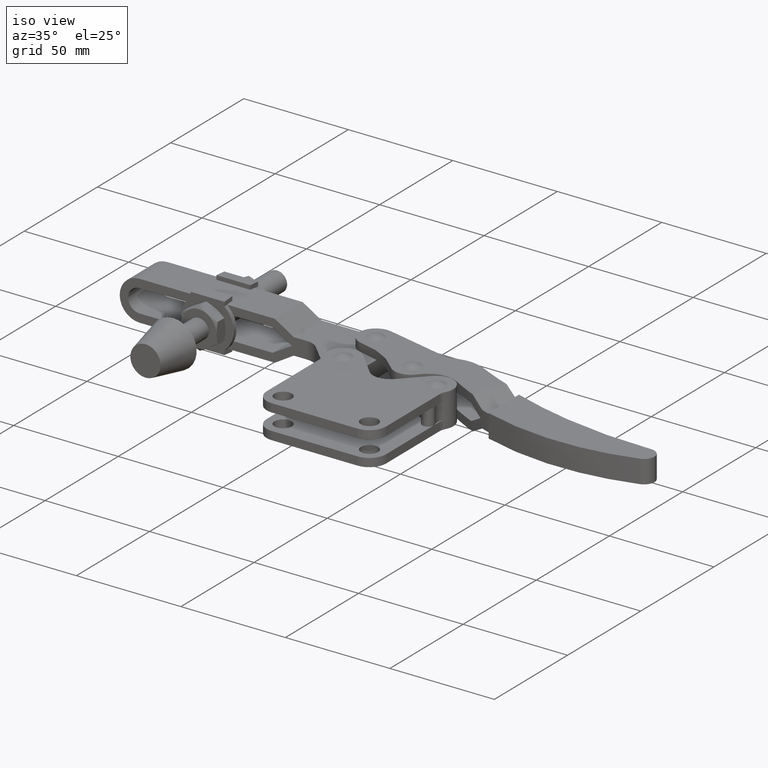
[diagram: clean part render]
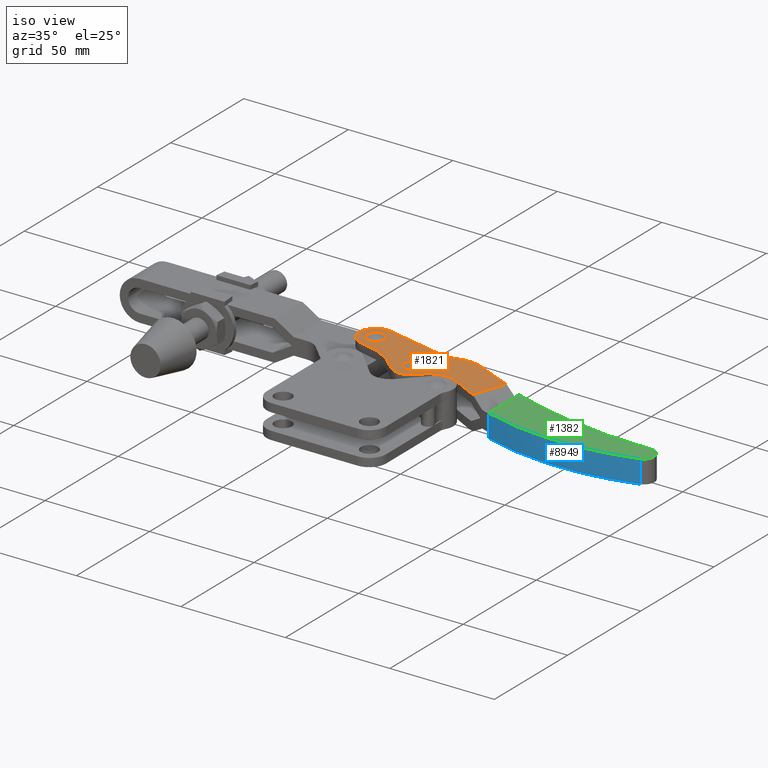
[diagram: same view with three faces highlighted in distinct colors, each labeled with its STEP entity id]
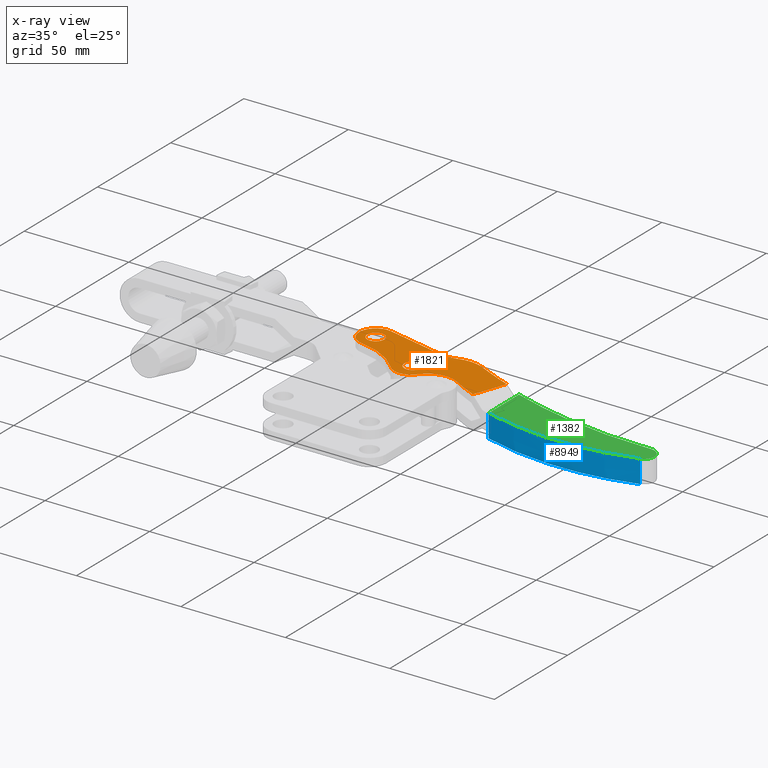
[diagram: x-ray of the same camera — body ghosted, the three highlighted faces saturated]
A machine part, iso view with three faces highlighted in distinct colors.
The next image is the same camera in x-ray (body ghosted, the three faces saturated) — at least one of them is partly hidden behind the body in this view.
Their STEP definitions:

[orange] entity #1821 — the highlighted planar face has unit normal (0, 0, -1).
#86 = CIRCLE ( 'NONE', #7951, 4.063249930784229100 ) ;
#95 = DIRECTION ( 'NONE',  ( 1.896091282942880500E-014, 2.492263242682608000E-017, -1.000000000000000000 ) ) ;
#321 = DIRECTION ( 'NONE',  ( -1.000000000000000000, 1.707720180178034100E-015, -1.899838700448063000E-014 ) ) ;
#417 = DIRECTION ( 'NONE',  ( -1.896091282942899700E-014, -2.492263242682654500E-017, 1.000000000000000000 ) ) ;
#533 = CIRCLE ( 'NONE', #4624, 16.99999999999998600 ) ;
#728 = DIRECTION ( 'NONE',  ( -0.9999970750637411400, -0.002418649202040521600, -1.897991567833449500E-014 ) ) ;
#757 = CARTESIAN_POINT ( 'NONE',  ( -23.74033431779628600, 46.40948752302850300, 3.999999999998878700 ) ) ;
#1050 = CARTESIAN_POINT ( 'NONE',  ( -23.74033431779650300, 42.34623759224427200, 3.999999999998878700 ) ) ;
#1158 = FACE_BOUND ( 'NONE', #4618, .T. ) ;
#1167 = CIRCLE ( 'NONE', #7042, 208.0000000000000000 ) ;
#1185 = ORIENTED_EDGE ( 'NONE', *, *, #1513, .T. ) ;
#1202 = LINE ( 'NONE', #7121, #8839 ) ;
#1261 = CARTESIAN_POINT ( 'NONE',  ( -50.89995488696968800, 55.89999999995359300, 3.999999999998363500 ) ) ;
#1263 = AXIS2_PLACEMENT_3D ( 'NONE', #3159, #8334, #3909 ) ;
#1413 = AXIS2_PLACEMENT_3D ( 'NONE', #7890, #3485, #8631 ) ;
#1414 = VERTEX_POINT ( 'NONE', #3661 ) ;
#1513 = EDGE_CURVE ( 'NONE', #2351, #6307, #1167, .T. ) ;
#1550 = EDGE_LOOP ( 'NONE', ( #1865, #4217, #1185, #4691, #5115, #7505, #3137, #2254, #4749, #6077 ) ) ;
#1564 = PLANE ( 'NONE',  #7659 ) ;
#1597 = CARTESIAN_POINT ( 'NONE',  ( -7.500062574786567500, 29.30489132586542000, 3.999999999999185500 ) ) ;
#1821 = ADVANCED_FACE ( 'NONE', ( #4861, #1158, #2889 ), #1564, .F. ) ;
#1865 = ORIENTED_EDGE ( 'NONE', *, *, #5604, .T. ) ;
#1967 = VERTEX_POINT ( 'NONE', #2450 ) ;
#1999 = DIRECTION ( 'NONE',  ( 0.9999970750637411400, 0.002418649202040774000, 1.897353801849631800E-014 ) ) ;
#2027 = EDGE_CURVE ( 'NONE', #1414, #4247, #9008, .T. ) ;
#2115 = CARTESIAN_POINT ( 'NONE',  ( -24.07740094939840600, 41.63483262392608700, 3.999999999998871600 ) ) ;
#2170 = EDGE_CURVE ( 'NONE', #3687, #5042, #8660, .T. ) ;
#2199 = ORIENTED_EDGE ( 'NONE', *, *, #8387, .F. ) ;
#2254 = ORIENTED_EDGE ( 'NONE', *, *, #3116, .T. ) ;
#2348 = DIRECTION ( 'NONE',  ( 0.9999970750637410300, 0.002418649202040514700, 1.897782001759776400E-014 ) ) ;
#2351 = VERTEX_POINT ( 'NONE', #4077 ) ;
#2429 = CARTESIAN_POINT ( 'NONE',  ( -50.92200311956136000, 55.89998914490118400, 3.999999999998363500 ) ) ;
#2440 = CARTESIAN_POINT ( 'NONE',  ( -50.92200311956114000, 59.96323907568687200, 3.999999999998363500 ) ) ;
#2450 = CARTESIAN_POINT ( 'NONE',  ( -52.01977667976437700, 47.97876277636394300, 3.999999999998341800 ) ) ;
#2541 = CARTESIAN_POINT ( 'NONE',  ( -50.92200311956136000, 55.89998914490118400, 3.999999999998363500 ) ) ;
#2611 = AXIS2_PLACEMENT_3D ( 'NONE', #1261, #6449, #1999 ) ;
#2688 = DIRECTION ( 'NONE',  ( 0.9999970750637411400, 0.002418649202040574500, 1.896102799342918600E-014 ) ) ;
#2853 = DIRECTION ( 'NONE',  ( 0.9999970750637411400, 0.002418649202040774000, 1.897353801849631800E-014 ) ) ;
#2889 = FACE_OUTER_BOUND ( 'NONE', #1550, .T. ) ;
#3077 = EDGE_LOOP ( 'NONE', ( #4409, #6487 ) ) ;
#3116 = EDGE_CURVE ( 'NONE', #1967, #9112, #3264, .T. ) ;
#3137 = ORIENTED_EDGE ( 'NONE', *, *, #5404, .T. ) ;
#3159 = CARTESIAN_POINT ( 'NONE',  ( -17.67629147331087200, 70.88046100839869700, 3.999999999998994100 ) ) ;
#3172 = DIRECTION ( 'NONE',  ( -1.000000000000000000, 0.0000000000000000000, -1.899838700447380200E-014 ) ) ;
#3264 = CIRCLE ( 'NONE', #1413, 36.50000000000002100 ) ;
#3291 = CARTESIAN_POINT ( 'NONE',  ( -50.92200311956114000, 51.83673921411549700, 3.999999999998363500 ) ) ;
#3302 = DIRECTION ( 'NONE',  ( -1.000000000000000000, 0.0000000000000000000, -1.899838700447380200E-014 ) ) ;
#3361 = VECTOR ( 'NONE', #5021, 1000.000000000000000 ) ;
#3384 = VERTEX_POINT ( 'NONE', #4453 ) ;
#3444 = CARTESIAN_POINT ( 'NONE',  ( 91.21575611816184900, 243.4839850496326800, 4.000000000001062300 ) ) ;
#3485 = DIRECTION ( 'NONE',  ( 1.896091282942899700E-014, 2.492263242682654500E-017, -1.000000000000000000 ) ) ;
#3534 = DIRECTION ( 'NONE',  ( -1.896091282942899700E-014, -2.492263242682654500E-017, 1.000000000000000000 ) ) ;
#3661 = CARTESIAN_POINT ( 'NONE',  ( -20.79260379126437300, 57.23170291335680600, 3.999999999998934200 ) ) ;
#3687 = VERTEX_POINT ( 'NONE', #7786 ) ;
#3909 = DIRECTION ( 'NONE',  ( 0.9999970750637411400, 0.002418649202040401500, 1.895804941603223500E-014 ) ) ;
#4077 = CARTESIAN_POINT ( 'NONE',  ( 16.11568427977723400, 49.51496894172576200, 3.999999999999634100 ) ) ;
#4217 = ORIENTED_EDGE ( 'NONE', *, *, #8930, .T. ) ;
#4247 = VERTEX_POINT ( 'NONE', #9245 ) ;
#4260 = ORIENTED_EDGE ( 'NONE', *, *, #2170, .F. ) ;
#4301 = AXIS2_PLACEMENT_3D ( 'NONE', #2429, #7593, #3172 ) ;
#4409 = ORIENTED_EDGE ( 'NONE', *, *, #7013, .T. ) ;
#4453 = CARTESIAN_POINT ( 'NONE',  ( -1.063269083125172100, 40.20641826229530800, 3.999999999999308100 ) ) ;
#4461 = CARTESIAN_POINT ( 'NONE',  ( -0.3788408210954122300, 56.73701770736226300, 3.999999999999321000 ) ) ;
#4512 = DIRECTION ( 'NONE',  ( -0.9999970750637411400, -0.002418649202040597500, -1.896091764907240000E-014 ) ) ;
#4535 = CIRCLE ( 'NONE', #2611, 8.000000000000003600 ) ;
#4549 = CARTESIAN_POINT ( 'NONE',  ( -57.12896360939011200, 11.83811794373621000, 3.999999999998244500 ) ) ;
#4618 = EDGE_LOOP ( 'NONE', ( #2199, #4260 ) ) ;
#4624 = AXIS2_PLACEMENT_3D ( 'NONE', #6091, #5153, #728 ) ;
#4650 = CARTESIAN_POINT ( 'NONE',  ( 10.76280230628348600, 34.07859469873378100, 3.999999999999531900 ) ) ;
#4691 = ORIENTED_EDGE ( 'NONE', *, *, #8612, .T. ) ;
#4749 = ORIENTED_EDGE ( 'NONE', *, *, #6203, .T. ) ;
#4797 = VERTEX_POINT ( 'NONE', #3291 ) ;
#4828 = CARTESIAN_POINT ( 'NONE',  ( -23.74033431779650300, 42.34623759224427200, 3.999999999998878700 ) ) ;
#4861 = FACE_BOUND ( 'NONE', #3077, .T. ) ;
#5021 = DIRECTION ( 'NONE',  ( -0.9749112925029915800, 0.2225937369966782800, -1.847966041168731400E-014 ) ) ;
#5042 = VERTEX_POINT ( 'NONE', #757 ) ;
#5115 = ORIENTED_EDGE ( 'NONE', *, *, #7556, .T. ) ;
#5153 = DIRECTION ( 'NONE',  ( -1.896091282942899700E-014, -2.492263242682654500E-017, 1.000000000000000000 ) ) ;
#5404 = EDGE_CURVE ( 'NONE', #4247, #1967, #4535, .T. ) ;
#5500 = DIRECTION ( 'NONE',  ( -1.896091282942899700E-014, -2.492263242682654500E-017, 1.000000000000000000 ) ) ;
#5585 = DIRECTION ( 'NONE',  ( -1.000000000000000000, 0.0000000000000000000, -1.899838700448063000E-014 ) ) ;
#5604 = EDGE_CURVE ( 'NONE', #3384, #8262, #8789, .T. ) ;
#6077 = ORIENTED_EDGE ( 'NONE', *, *, #8045, .T. ) ;
#6091 = CARTESIAN_POINT ( 'NONE',  ( -7.864937686323167500, 41.47404441496517800, 3.999999999999178900 ) ) ;
#6203 = EDGE_CURVE ( 'NONE', #9112, #7765, #6478, .T. ) ;
#6307 = VERTEX_POINT ( 'NONE', #4461 ) ;
#6364 = AXIS2_PLACEMENT_3D ( 'NONE', #1597, #6776, #2348 ) ;
#6449 = DIRECTION ( 'NONE',  ( -1.896091282942899700E-014, -2.492263242682654500E-017, 1.000000000000000000 ) ) ;
#6478 = CIRCLE ( 'NONE', #7021, 8.000000000000003600 ) ;
#6487 = ORIENTED_EDGE ( 'NONE', *, *, #7636, .T. ) ;
#6502 = VERTEX_POINT ( 'NONE', #2440 ) ;
#6723 = AXIS2_PLACEMENT_3D ( 'NONE', #2541, #7707, #3302 ) ;
#6732 = CARTESIAN_POINT ( 'NONE',  ( -30.01925491074522900, 36.27811987243127600, 3.999999999998758800 ) ) ;
#6776 = DIRECTION ( 'NONE',  ( 1.896091282942899700E-014, 2.492263242682654500E-017, -1.000000000000000000 ) ) ;
#7013 = EDGE_CURVE ( 'NONE', #6502, #4797, #9233, .T. ) ;
#7021 = AXIS2_PLACEMENT_3D ( 'NONE', #2115, #7298, #2853 ) ;
#7042 = AXIS2_PLACEMENT_3D ( 'NONE', #3444, #7847, #2688 ) ;
#7121 = CARTESIAN_POINT ( 'NONE',  ( 10.76280230628346500, 34.07859469873376000, 3.999999999999531900 ) ) ;
#7298 = DIRECTION ( 'NONE',  ( -1.896091282942899700E-014, -2.492263242682654500E-017, 1.000000000000000000 ) ) ;
#7505 = ORIENTED_EDGE ( 'NONE', *, *, #2027, .T. ) ;
#7556 = EDGE_CURVE ( 'NONE', #9306, #1414, #9582, .T. ) ;
#7593 = DIRECTION ( 'NONE',  ( 1.896091282942899700E-014, 2.492263242682654500E-017, -1.000000000000000000 ) ) ;
#7636 = EDGE_CURVE ( 'NONE', #4797, #6502, #7928, .T. ) ;
#7659 = AXIS2_PLACEMENT_3D ( 'NONE', #4549, #95, #4512 ) ;
#7685 = CARTESIAN_POINT ( 'NONE',  ( -13.24535750499384400, 57.60014383717064800, 3.999999999999077200 ) ) ;
#7707 = DIRECTION ( 'NONE',  ( 1.896091282942899700E-014, 2.492263242682654500E-017, -1.000000000000000000 ) ) ;
#7765 = VERTEX_POINT ( 'NONE', #7833 ) ;
#7786 = CARTESIAN_POINT ( 'NONE',  ( -23.74033431779628600, 38.28298766146003400, 3.999999999998878700 ) ) ;
#7833 = CARTESIAN_POINT ( 'NONE',  ( -17.65829606087495000, 36.86041198576126000, 3.999999999998993200 ) ) ;
#7847 = DIRECTION ( 'NONE',  ( 1.896091282942899700E-014, 2.492263242682654500E-017, -1.000000000000000000 ) ) ;
#7883 = DIRECTION ( 'NONE',  ( 0.3276309422909433100, 0.9448057819750832500, 6.235728784221084500E-015 ) ) ;
#7890 = CARTESIAN_POINT ( 'NONE',  ( -57.12896360939011200, 11.83811794373621000, 3.999999999998244500 ) ) ;
#7928 = CIRCLE ( 'NONE', #6723, 4.063249930785689300 ) ;
#7936 = CARTESIAN_POINT ( 'NONE',  ( 60.20320925377825500, 143.9689771753914200, 4.000000000000471600 ) ) ;
#7951 = AXIS2_PLACEMENT_3D ( 'NONE', #4828, #417, #5585 ) ;
#8022 = CARTESIAN_POINT ( 'NONE',  ( -49.11920499099626600, 63.69929033997752300, 3.999999999998397300 ) ) ;
#8045 = EDGE_CURVE ( 'NONE', #7765, #3384, #9096, .T. ) ;
#8262 = VERTEX_POINT ( 'NONE', #4650 ) ;
#8334 = DIRECTION ( 'NONE',  ( 1.896091282942899700E-014, 2.492263242682654500E-017, -1.000000000000000000 ) ) ;
#8387 = EDGE_CURVE ( 'NONE', #5042, #3687, #86, .T. ) ;
#8612 = EDGE_CURVE ( 'NONE', #6307, #9306, #533, .T. ) ;
#8631 = DIRECTION ( 'NONE',  ( -0.9999970750637410300, -0.002418649202040619200, -1.896314155930810100E-014 ) ) ;
#8660 = CIRCLE ( 'NONE', #9289, 4.063249930784229100 ) ;
#8684 = DIRECTION ( 'NONE',  ( -0.9999970750637410300, -0.002418649202040554600, -1.895959184947265100E-014 ) ) ;
#8789 = CIRCLE ( 'NONE', #9046, 120.5000000000000300 ) ;
#8839 = VECTOR ( 'NONE', #7883, 1000.000000000000000 ) ;
#8930 = EDGE_CURVE ( 'NONE', #8262, #2351, #1202, .T. ) ;
#9008 = LINE ( 'NONE', #8022, #3361 ) ;
#9046 = AXIS2_PLACEMENT_3D ( 'NONE', #7936, #3534, #8684 ) ;
#9096 = CIRCLE ( 'NONE', #6364, 12.66000000000000500 ) ;
#9112 = VERTEX_POINT ( 'NONE', #6732 ) ;
#9233 = CIRCLE ( 'NONE', #4301, 4.063249930785689300 ) ;
#9245 = CARTESIAN_POINT ( 'NONE',  ( -49.11920499099626600, 63.69929033997752300, 3.999999999998397300 ) ) ;
#9289 = AXIS2_PLACEMENT_3D ( 'NONE', #1050, #5500, #321 ) ;
#9306 = VERTEX_POINT ( 'NONE', #7685 ) ;
#9582 = CIRCLE ( 'NONE', #1263, 14.00000000000001100 ) ;

[blue] entity #8949 — the highlighted face is a freeform B-spline surface patch.
#199 = CARTESIAN_POINT ( 'NONE',  ( 95.60933568258580800, 27.21971329282849100, -3.999999999998857800 ) ) ;
#462 = CARTESIAN_POINT ( 'NONE',  ( 22.66801446381552400, 27.88677298597539100, -5.833333302405744500 ) ) ;
#557 = CARTESIAN_POINT ( 'NONE',  ( 36.77727933315194500, 23.23509302539487800, -0.6339999999998707800 ) ) ;
#591 = CARTESIAN_POINT ( 'NONE',  ( 66.51762730411285000, 20.80742639757678700, -2.877999999999371700 ) ) ;
#623 = CARTESIAN_POINT ( 'NONE',  ( 96.34085720835994900, 27.44360647524962400, -5.121999999998872800 ) ) ;
#907 = EDGE_LOOP ( 'NONE', ( #6024, #7009, #4611, #6976, #6947 ) ) ;
#1114 = EDGE_CURVE ( 'NONE', #8273, #8968, #3819, .T. ) ;
#1189 = CARTESIAN_POINT ( 'NONE',  ( 22.66801694025606700, 27.88574909492273700, -9.499999905955819600 ) ) ;
#1295 = CARTESIAN_POINT ( 'NONE',  ( 36.77730727342716200, 23.23814853291771600, -5.122000000000002600 ) ) ;
#1330 = CARTESIAN_POINT ( 'NONE',  ( 66.51760386377027600, 20.80486299606856100, -7.365999999999507600 ) ) ;
#1354 = CARTESIAN_POINT ( 'NONE',  ( 96.34084921816929600, 27.44273267970391600, -9.609999999999008200 ) ) ;
#1505 = CARTESIAN_POINT ( 'NONE',  ( 95.60933507019049700, 27.21964632218098500, -0.3333333333321825100 ) ) ;
#1849 = CARTESIAN_POINT ( 'NONE',  ( 22.66801694025538800, 27.88574909509437900, 1.499999905955352200 ) ) ;
#2029 = CARTESIAN_POINT ( 'NONE',  ( 36.77723292126212600, 23.23001748914987300, -9.610000000000136200 ) ) ;
#2059 = CARTESIAN_POINT ( 'NONE',  ( 81.41732140830230000, 22.82186998428786900, 1.610000000001038200 ) ) ;
#2403 = CARTESIAN_POINT ( 'NONE',  ( 37.21457113713999100, 23.18848390368755500, -9.499999999999980500 ) ) ;
#2641 = CARTESIAN_POINT ( 'NONE',  ( 22.66801507245418500, 27.88652134261207700, -0.3333333278482822900 ) ) ;
#2718 = VERTEX_POINT ( 'NONE', #3824 ) ;
#2772 = CARTESIAN_POINT ( 'NONE',  ( 51.63757441058933000, 20.94091681201651400, -0.6339999999995914500 ) ) ;
#2808 = CARTESIAN_POINT ( 'NONE',  ( 81.41739575833526000, 22.83000079487904100, -2.877999999999091500 ) ) ;
#2939 = FACE_OUTER_BOUND ( 'NONE', #907, .T. ) ;
#2983 = CARTESIAN_POINT ( 'NONE',  ( 95.60933568258580800, 27.21971329282849100, -3.999999999998857800 ) ) ;
#2993 = B_SPLINE_CURVE_WITH_KNOTS ( 'NONE', 5,
 ( #1849, #6293, #7755, #3343, #8507, #4084 ),
 .UNSPECIFIED., .F., .F.,
 ( 6, 6 ),
 ( 1.425060440672305600E-007, 0.07404232256998222200 ),
 .UNSPECIFIED. ) ;
#3225 = CARTESIAN_POINT ( 'NONE',  ( 95.60933386334160400, 27.21951434294650700, -7.299999999998867400 ) ) ;
#3311 = CARTESIAN_POINT ( 'NONE',  ( 66.37213572788265000, 20.84278871716341200, -9.499999999999428000 ) ) ;
#3343 = CARTESIAN_POINT ( 'NONE',  ( 66.37213572711675600, 20.84278864084439700, 1.500000000000595100 ) ) ;
#3509 = CARTESIAN_POINT ( 'NONE',  ( 21.94071054131607900, 28.12394104547358600, -2.878000000000218200 ) ) ;
#3542 = CARTESIAN_POINT ( 'NONE',  ( 51.63759784667201600, 20.94347974764709600, -5.121999999999724600 ) ) ;
#3566 = CARTESIAN_POINT ( 'NONE',  ( 81.41736781852363000, 22.82694533803061900, -7.365999999999226100 ) ) ;
#3819 = B_SPLINE_CURVE_WITH_KNOTS ( 'NONE', 5,
 ( #9220, #2403, #6796, #3311, #7049, #6322 ),
 .UNSPECIFIED., .F., .F.,
 ( 6, 6 ),
 ( 1.425059404098854000E-007, 0.07404232257266157900 ),
 .UNSPECIFIED. ) ;
#3824 = CARTESIAN_POINT ( 'NONE',  ( 22.66801694025538800, 27.88574909509437900, 1.499999905955352200 ) ) ;
#3971 = CARTESIAN_POINT ( 'NONE',  ( 95.60933629498111900, 27.21978026348466900, -5.099999999998866300 ) ) ;
#4084 = CARTESIAN_POINT ( 'NONE',  ( 95.60933101707583100, 27.21920309318262800, 1.500000000001153300 ) ) ;
#4149 = VERTEX_POINT ( 'NONE', #199 ) ;
#4211 = CARTESIAN_POINT ( 'NONE',  ( 21.94070255496834300, 28.12306767020417900, 1.609999999999911500 ) ) ;
#4244 = CARTESIAN_POINT ( 'NONE',  ( 21.94070951981991200, 28.12382933614094700, -7.366000000000354000 ) ) ;
#4274 = CARTESIAN_POINT ( 'NONE',  ( 51.63752289505934800, 20.93528314916856600, -9.609999999999855500 ) ) ;
#4307 = CARTESIAN_POINT ( 'NONE',  ( 96.34084921814908900, 27.44273267751331200, 1.610000000001323000 ) ) ;
#4611 = ORIENTED_EDGE ( 'NONE', *, *, #7607, .T. ) ;
#4681 = CARTESIAN_POINT ( 'NONE',  ( 22.66801694025606700, 27.88574909492273700, -9.499999905955819600 ) ) ;
#4877 = CARTESIAN_POINT ( 'NONE',  ( 22.66801446381541800, 27.88677298600475000, -4.000000000000235400 ) ) ;
#4946 = CARTESIAN_POINT ( 'NONE',  ( 95.60933101720192400, 27.21920309327097300, -9.499999999998870200 ) ) ;
#4979 = CARTESIAN_POINT ( 'NONE',  ( 36.77723292086184900, 23.23001744540084700, 1.610000000000193700 ) ) ;
#5012 = CARTESIAN_POINT ( 'NONE',  ( 66.51760386330323600, 20.80486294500864700, -0.6339999999993061200 ) ) ;
#5040 = CARTESIAN_POINT ( 'NONE',  ( 96.34085720835605600, 27.44360647482610800, -2.877999999998807700 ) ) ;
#5295 = B_SPLINE_CURVE_WITH_KNOTS ( 'NONE', 3,
 ( #7810, #2641, #9316, #4877, #462, #5631, #1189 ),
 .UNSPECIFIED., .F., .F.,
 ( 4, 3, 4 ),
 ( 0.0000000000000000000, 0.005499999907216510500, 0.01099999981443303700 ),
 .UNSPECIFIED. ) ;
#5429 = CARTESIAN_POINT ( 'NONE',  ( 95.60933101707583100, 27.21920309318262800, 1.500000000001153300 ) ) ;
#5520 = EDGE_CURVE ( 'NONE', #2718, #8273, #5295, .T. ) ;
#5631 = CARTESIAN_POINT ( 'NONE',  ( 22.66801507245464000, 27.88652134249238700, -7.666666672152189200 ) ) ;
#5731 = CARTESIAN_POINT ( 'NONE',  ( 36.77730727334724000, 23.23814852418127300, -2.877999999999936200 ) ) ;
#5760 = CARTESIAN_POINT ( 'NONE',  ( 66.51762730426797500, 20.80742641453681300, -5.121999999999438600 ) ) ;
#5792 = CARTESIAN_POINT ( 'NONE',  ( 96.34085618584700200, 27.44349465472594600, -7.365999999998943600 ) ) ;
#6024 = ORIENTED_EDGE ( 'NONE', *, *, #5520, .T. ) ;
#6185 = CARTESIAN_POINT ( 'NONE',  ( 95.60933101720192400, 27.21920309327097300, -9.499999999998870200 ) ) ;
#6293 = CARTESIAN_POINT ( 'NONE',  ( 37.21457113676948600, 23.18848386581250800, 1.500000000000040600 ) ) ;
#6322 = CARTESIAN_POINT ( 'NONE',  ( 95.60933101720192400, 27.21920309327097300, -9.499999999998870200 ) ) ;
#6473 = CARTESIAN_POINT ( 'NONE',  ( 36.77727933339252100, 23.23509305168802200, -7.366000000000071600 ) ) ;
#6513 = CARTESIAN_POINT ( 'NONE',  ( 66.51755234011911000, 20.79922844511499500, -9.609999999999573100 ) ) ;
#6687 = CARTESIAN_POINT ( 'NONE',  ( 95.60933101707583100, 27.21920309318262800, 1.500000000001153300 ) ) ;
#6796 = CARTESIAN_POINT ( 'NONE',  ( 51.78384828911237000, 20.97616776443369300, -9.499999999999706900 ) ) ;
#6947 = ORIENTED_EDGE ( 'NONE', *, *, #8845, .F. ) ;
#6976 = ORIENTED_EDGE ( 'NONE', *, *, #7972, .F. ) ;
#7009 = ORIENTED_EDGE ( 'NONE', *, *, #1114, .T. ) ;
#7049 = CARTESIAN_POINT ( 'NONE',  ( 80.97943358985891400, 22.78836167925225800, -9.499999999999156200 ) ) ;
#7219 = CARTESIAN_POINT ( 'NONE',  ( 51.63752289579884500, 20.93528323006283600, 1.610000000000472600 ) ) ;
#7248 = CARTESIAN_POINT ( 'NONE',  ( 81.41736781876373600, 22.82694536430159700, -0.6339999999990260100 ) ) ;
#7429 = CARTESIAN_POINT ( 'NONE',  ( 95.60933507019052500, 27.21964632218098500, -2.166666666665516300 ) ) ;
#7553 = B_SPLINE_SURFACE_WITH_KNOTS ( 'NONE', 5, 5, ( 
 ( #4211, #7915, #3509, #8657, #4244, #9428 ),
 ( #4979, #557, #5731, #1295, #6473, #2029 ),
 ( #7219, #2772, #7945, #3542, #8689, #4274 ),
 ( #9459, #5012, #591, #5760, #1330, #6513 ),
 ( #2059, #7248, #2808, #7978, #3566, #8720 ),
 ( #4307, #9486, #5040, #623, #5792, #1354 ) ),
 .UNSPECIFIED., .F., .F., .F.,
 ( 6, 6 ),
 ( 6, 6 ),
 ( -37.19270477536442600, 37.21055240605926400 ),
 ( -5.610000000000164600, 5.610000000000169100 ),
 .UNSPECIFIED. ) ;
#7607 = EDGE_CURVE ( 'NONE', #8968, #4149, #9070, .T. ) ;
#7649 = CARTESIAN_POINT ( 'NONE',  ( 95.60933118664144100, 27.21922162293951100, -8.399999999998867000 ) ) ;
#7755 = CARTESIAN_POINT ( 'NONE',  ( 51.78384828972828300, 20.97616783683183800, 1.500000000000314600 ) ) ;
#7810 = CARTESIAN_POINT ( 'NONE',  ( 22.66801694025538800, 27.88574909509437900, 1.499999905955352200 ) ) ;
#7915 = CARTESIAN_POINT ( 'NONE',  ( 21.94070951983230300, 28.12382933751240400, -0.6340000000001526600 ) ) ;
#7945 = CARTESIAN_POINT ( 'NONE',  ( 51.63759784681961000, 20.94347976379273000, -2.877999999999655900 ) ) ;
#7972 = EDGE_CURVE ( 'NONE', #8304, #4149, #8583, .T. ) ;
#7978 = CARTESIAN_POINT ( 'NONE',  ( 81.41739575825552300, 22.83000078615405600, -5.121999999999159700 ) ) ;
#8273 = VERTEX_POINT ( 'NONE', #4681 ) ;
#8304 = VERTEX_POINT ( 'NONE', #5429 ) ;
#8395 = CARTESIAN_POINT ( 'NONE',  ( 95.60933548443463800, 27.21969162330784500, -6.199999999998866900 ) ) ;
#8507 = CARTESIAN_POINT ( 'NONE',  ( 80.97943359011368600, 22.78836171695151700, 1.500000000000868600 ) ) ;
#8583 = B_SPLINE_CURVE_WITH_KNOTS ( 'NONE', 3,
 ( #6687, #1505, #7429, #2983 ),
 .UNSPECIFIED., .F., .F.,
 ( 4, 4 ),
 ( 0.0000000000000000000, 1.000000000000000000 ),
 .UNSPECIFIED. ) ;
#8657 = CARTESIAN_POINT ( 'NONE',  ( 21.94071054131199700, 28.12394104502277500, -5.122000000000283200 ) ) ;
#8689 = CARTESIAN_POINT ( 'NONE',  ( 51.63757441014493600, 20.94091676340391900, -7.365999999999791800 ) ) ;
#8720 = CARTESIAN_POINT ( 'NONE',  ( 81.41732140790262000, 22.82186994055921400, -9.609999999999288900 ) ) ;
#8845 = EDGE_CURVE ( 'NONE', #2718, #8304, #2993, .T. ) ;
#8949 = ADVANCED_FACE ( 'NONE', ( #2939 ), #7553, .F. ) ;
#8968 = VERTEX_POINT ( 'NONE', #4946 ) ;
#9070 = B_SPLINE_CURVE_WITH_KNOTS ( 'NONE', 5,
 ( #6185, #7649, #3225, #8395, #3971, #9139 ),
 .UNSPECIFIED., .F., .F.,
 ( 6, 6 ),
 ( 0.0000000000000000000, 1.000000000000000000 ),
 .UNSPECIFIED. ) ;
#9139 = CARTESIAN_POINT ( 'NONE',  ( 95.60933568258580800, 27.21971329282849100, -3.999999999998857800 ) ) ;
#9220 = CARTESIAN_POINT ( 'NONE',  ( 22.66801694025606700, 27.88574909492273700, -9.499999905955819600 ) ) ;
#9316 = CARTESIAN_POINT ( 'NONE',  ( 22.66801446381531100, 27.88677298603411000, -2.166666697594732000 ) ) ;
#9428 = CARTESIAN_POINT ( 'NONE',  ( 21.94070255494781600, 28.12306766793395600, -9.610000000000416900 ) ) ;
#9459 = CARTESIAN_POINT ( 'NONE',  ( 66.51755233934183300, 20.79922836013611200, 1.610000000000759300 ) ) ;
#9486 = CARTESIAN_POINT ( 'NONE',  ( 96.34085618583490900, 27.44349465341738500, -0.6339999999987423500 ) ) ;

[green] entity #1382 — the highlighted planar face has unit normal (-0, -0, 1).
#37 = LINE ( 'NONE', #7029, #3953 ) ;
#181 = AXIS2_PLACEMENT_3D ( 'NONE', #9133, #3969, #8391 ) ;
#309 = CIRCLE ( 'NONE', #356, 4.999999999999999100 ) ;
#356 = AXIS2_PLACEMENT_3D ( 'NONE', #6305, #1857, #7036 ) ;
#443 = CARTESIAN_POINT ( 'NONE',  ( 22.61765067861182400, 48.70981663228461400, 1.499999977681685200 ) ) ;
#577 = CIRCLE ( 'NONE', #181, 4.999999999999999100 ) ;
#1340 = ORIENTED_EDGE ( 'NONE', *, *, #6605, .T. ) ;
#1382 = ADVANCED_FACE ( 'NONE', ( #5235 ), #3692, .T. ) ;
#1553 = ORIENTED_EDGE ( 'NONE', *, *, #8374, .T. ) ;
#1596 = EDGE_CURVE ( 'NONE', #7069, #2718, #37, .T. ) ;
#1849 = CARTESIAN_POINT ( 'NONE',  ( 22.66801694025538800, 27.88574909509437900, 1.499999905955352200 ) ) ;
#1857 = DIRECTION ( 'NONE',  ( -1.911390331690859100E-014, -2.529266382960700900E-017, 1.000000000000000000 ) ) ;
#2072 = AXIS2_PLACEMENT_3D ( 'NONE', #2869, #7315, #2132 ) ;
#2132 = DIRECTION ( 'NONE',  ( 0.002418649202039811200, -0.9999970750637411400, 2.093723715514421600E-017 ) ) ;
#2216 = EDGE_CURVE ( 'NONE', #8304, #8918, #577, .T. ) ;
#2487 = EDGE_LOOP ( 'NONE', ( #8118, #5728, #8649, #1553, #1340 ) ) ;
#2594 = DIRECTION ( 'NONE',  ( 0.002418649202039811200, -0.9999970750637411400, 2.093723715514421300E-017 ) ) ;
#2718 = VERTEX_POINT ( 'NONE', #3824 ) ;
#2869 = CARTESIAN_POINT ( 'NONE',  ( 22.62149597772694800, 47.11996727706226600, 1.499999999999757100 ) ) ;
#2993 = B_SPLINE_CURVE_WITH_KNOTS ( 'NONE', 5,
 ( #1849, #6293, #7755, #3343, #8507, #4084 ),
 .UNSPECIFIED., .F., .F.,
 ( 6, 6 ),
 ( 1.425060440672305600E-007, 0.07404232256998222200 ),
 .UNSPECIFIED. ) ;
#3242 = CARTESIAN_POINT ( 'NONE',  ( 22.61765067861182400, 48.70981663228461400, 1.499999977681685200 ) ) ;
#3343 = CARTESIAN_POINT ( 'NONE',  ( 66.37213572711675600, 20.84278864084439700, 1.500000000000595100 ) ) ;
#3383 = CARTESIAN_POINT ( 'NONE',  ( 94.08862832723765700, 37.00352430617692800, 1.499999999876122200 ) ) ;
#3692 = PLANE ( 'NONE',  #2072 ) ;
#3824 = CARTESIAN_POINT ( 'NONE',  ( 22.66801694025538800, 27.88574909509437900, 1.499999905955352200 ) ) ;
#3953 = VECTOR ( 'NONE', #2594, 1000.000000000000000 ) ;
#3969 = DIRECTION ( 'NONE',  ( -1.911390331690859100E-014, -2.529266382960700900E-017, 1.000000000000000000 ) ) ;
#4084 = CARTESIAN_POINT ( 'NONE',  ( 95.60933101707583100, 27.21920309318262800, 1.500000000001153300 ) ) ;
#4119 = CARTESIAN_POINT ( 'NONE',  ( 64.88127984249584300, 37.90677618376233200, 1.500000000000564700 ) ) ;
#4853 = CARTESIAN_POINT ( 'NONE',  ( 36.49559054828366600, 43.82705920699923800, 1.500000000000026600 ) ) ;
#5235 = FACE_OUTER_BOUND ( 'NONE', #2487, .T. ) ;
#5429 = CARTESIAN_POINT ( 'NONE',  ( 95.60933101707583100, 27.21920309318262800, 1.500000000001153300 ) ) ;
#5728 = ORIENTED_EDGE ( 'NONE', *, *, #8845, .T. ) ;
#6118 = B_SPLINE_CURVE_WITH_KNOTS ( 'NONE', 5,
 ( #3383, #6331, #4119, #9298, #4853, #443 ),
 .UNSPECIFIED., .F., .F.,
 ( 6, 6 ),
 ( 0.0000000000000000000, 0.07277428358872180300 ),
 .UNSPECIFIED. ) ;
#6293 = CARTESIAN_POINT ( 'NONE',  ( 37.21457113676948600, 23.18848386581250800, 1.500000000000040600 ) ) ;
#6305 = CARTESIAN_POINT ( 'NONE',  ( 94.15826434000970800, 32.00445496370601000, 1.500000000001124200 ) ) ;
#6331 = CARTESIAN_POINT ( 'NONE',  ( 79.37803966708975200, 36.80215481192972500, 1.500000000000838200 ) ) ;
#6605 = EDGE_CURVE ( 'NONE', #7664, #7069, #6118, .T. ) ;
#6984 = CARTESIAN_POINT ( 'NONE',  ( 94.08862832723765700, 37.00352430617692800, 1.499999999876122200 ) ) ;
#7029 = CARTESIAN_POINT ( 'NONE',  ( 22.62149597772691900, 47.11996727706226600, 1.499999999999757100 ) ) ;
#7036 = DIRECTION ( 'NONE',  ( 0.9999970750637411400, 0.002418649202040601800, 1.912532632264430100E-014 ) ) ;
#7069 = VERTEX_POINT ( 'NONE', #3242 ) ;
#7315 = DIRECTION ( 'NONE',  ( -1.911390331690859100E-014, -2.529266382959236600E-017, 1.000000000000000000 ) ) ;
#7664 = VERTEX_POINT ( 'NONE', #6984 ) ;
#7755 = CARTESIAN_POINT ( 'NONE',  ( 51.78384828972828300, 20.97616783683183800, 1.500000000000314600 ) ) ;
#8118 = ORIENTED_EDGE ( 'NONE', *, *, #1596, .T. ) ;
#8304 = VERTEX_POINT ( 'NONE', #5429 ) ;
#8374 = EDGE_CURVE ( 'NONE', #8918, #7664, #309, .T. ) ;
#8391 = DIRECTION ( 'NONE',  ( 0.9999970750637411400, 0.002418649202040601800, 1.912532632264430100E-014 ) ) ;
#8507 = CARTESIAN_POINT ( 'NONE',  ( 80.97943359011368600, 22.78836171695151700, 1.500000000000868600 ) ) ;
#8597 = CARTESIAN_POINT ( 'NONE',  ( 99.15824971532838100, 32.01654820971621300, 1.500000000001219500 ) ) ;
#8649 = ORIENTED_EDGE ( 'NONE', *, *, #2216, .T. ) ;
#8845 = EDGE_CURVE ( 'NONE', #2718, #8304, #2993, .T. ) ;
#8918 = VERTEX_POINT ( 'NONE', #8597 ) ;
#9133 = CARTESIAN_POINT ( 'NONE',  ( 94.15826434000970800, 32.00445496370601000, 1.500000000001124200 ) ) ;
#9298 = CARTESIAN_POINT ( 'NONE',  ( 50.58685581621619300, 40.24673615195781200, 1.500000000000292400 ) ) ;